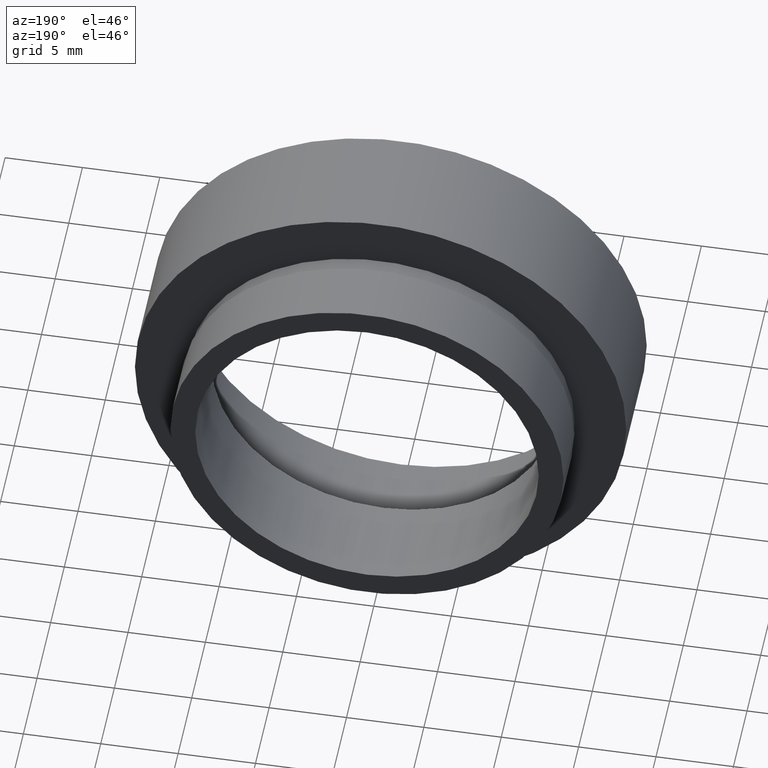
[diagram: clean part render]
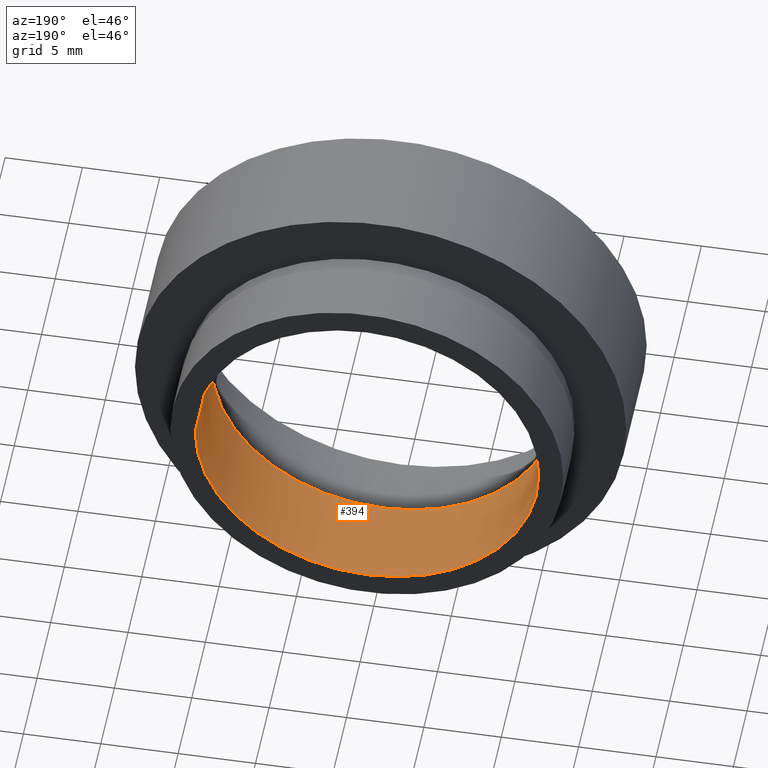
[diagram: same view with one face highlighted and labeled with its STEP entity id]
A machine part, auxiliary view. The second image highlights one B-rep face of the part: STEP entity #394.
In plain terms, the highlighted cylindrical surface (partial cylindrical patch) has radius 11.1 mm, axis along (-0, 1, -0).
Its self-contained STEP definition (entity closure, byte-faithful):
#16 = CARTESIAN_POINT ( 'NONE',  ( 11.10000000000000100, 16.88601823708207700, 1.359357947053562400E-015 ) ) ;
#18 = AXIS2_PLACEMENT_3D ( 'NONE', #122, #250, #611 ) ;
#21 = DIRECTION ( 'NONE',  ( -1.000000000000000000, 0.0000000000000000000, 0.0000000000000000000 ) ) ;
#29 = VERTEX_POINT ( 'NONE', #560 ) ;
#35 = CIRCLE ( 'NONE', #359, 11.10000000000000100 ) ;
#38 = CARTESIAN_POINT ( 'NONE',  ( -11.10000000000000100, 12.49999999999999500, 0.0000000000000000000 ) ) ;
#41 = EDGE_LOOP ( 'NONE', ( #447, #542, #523, #432 ) ) ;
#45 = CARTESIAN_POINT ( 'NONE',  ( 11.10000000000000100, 6.499999999999999100, 1.359357947053562400E-015 ) ) ;
#60 = CARTESIAN_POINT ( 'NONE',  ( 0.0000000000000000000, 16.88601823708207700, 0.0000000000000000000 ) ) ;
#77 = VERTEX_POINT ( 'NONE', #515 ) ;
#103 = CARTESIAN_POINT ( 'NONE',  ( -11.10000000000000100, 16.88601823708207700, 0.0000000000000000000 ) ) ;
#122 = CARTESIAN_POINT ( 'NONE',  ( 1.271920398992858000E-015, 6.499999999999997300, 0.0000000000000000000 ) ) ;
#132 = EDGE_CURVE ( 'NONE', #322, #77, #490, .T. ) ;
#177 = EDGE_CURVE ( 'NONE', #77, #483, #35, .T. ) ;
#187 = DIRECTION ( 'NONE',  ( -1.224646799147351000E-016, 1.000000000000000000, -0.0000000000000000000 ) ) ;
#204 = CARTESIAN_POINT ( 'NONE',  ( 5.371323195044474300E-016, 12.49999999999999600, 0.0000000000000000000 ) ) ;
#225 = CYLINDRICAL_SURFACE ( 'NONE', #484, 11.10000000000000100 ) ;
#230 = DIRECTION ( 'NONE',  ( -1.000000000000000000, -1.562813942321447500E-016, 0.0000000000000000000 ) ) ;
#250 = DIRECTION ( 'NONE',  ( -1.224646799147351000E-016, 1.000000000000000000, -0.0000000000000000000 ) ) ;
#284 = FACE_OUTER_BOUND ( 'NONE', #41, .T. ) ;
#303 = EDGE_CURVE ( 'NONE', #29, #483, #497, .T. ) ;
#312 = DIRECTION ( 'NONE',  ( -1.224646799147351000E-016, 1.000000000000000000, -0.0000000000000000000 ) ) ;
#322 = VERTEX_POINT ( 'NONE', #45 ) ;
#336 = DIRECTION ( 'NONE',  ( -1.224646799147351000E-016, 1.000000000000000000, -0.0000000000000000000 ) ) ;
#347 = CIRCLE ( 'NONE', #18, 11.10000000000000000 ) ;
#359 = AXIS2_PLACEMENT_3D ( 'NONE', #204, #312, #230 ) ;
#394 = ADVANCED_FACE ( 'NONE', ( #284 ), #225, .F. ) ;
#409 = EDGE_CURVE ( 'NONE', #322, #29, #347, .T. ) ;
#432 = ORIENTED_EDGE ( 'NONE', *, *, #303, .F. ) ;
#439 = VECTOR ( 'NONE', #187, 1000.000000000000000 ) ;
#447 = ORIENTED_EDGE ( 'NONE', *, *, #409, .F. ) ;
#458 = VECTOR ( 'NONE', #477, 1000.000000000000000 ) ;
#477 = DIRECTION ( 'NONE',  ( -1.224646799147351000E-016, 1.000000000000000000, -0.0000000000000000000 ) ) ;
#483 = VERTEX_POINT ( 'NONE', #38 ) ;
#484 = AXIS2_PLACEMENT_3D ( 'NONE', #60, #336, #21 ) ;
#490 = LINE ( 'NONE', #16, #439 ) ;
#497 = LINE ( 'NONE', #103, #458 ) ;
#515 = CARTESIAN_POINT ( 'NONE',  ( 11.10000000000000100, 12.49999999999999800, 1.359357947053562400E-015 ) ) ;
#523 = ORIENTED_EDGE ( 'NONE', *, *, #177, .T. ) ;
#542 = ORIENTED_EDGE ( 'NONE', *, *, #132, .T. ) ;
#560 = CARTESIAN_POINT ( 'NONE',  ( -11.09999999999999800, 6.499999999999995600, 0.0000000000000000000 ) ) ;
#611 = DIRECTION ( 'NONE',  ( -1.000000000000000000, -1.562813942321447800E-016, 0.0000000000000000000 ) ) ;